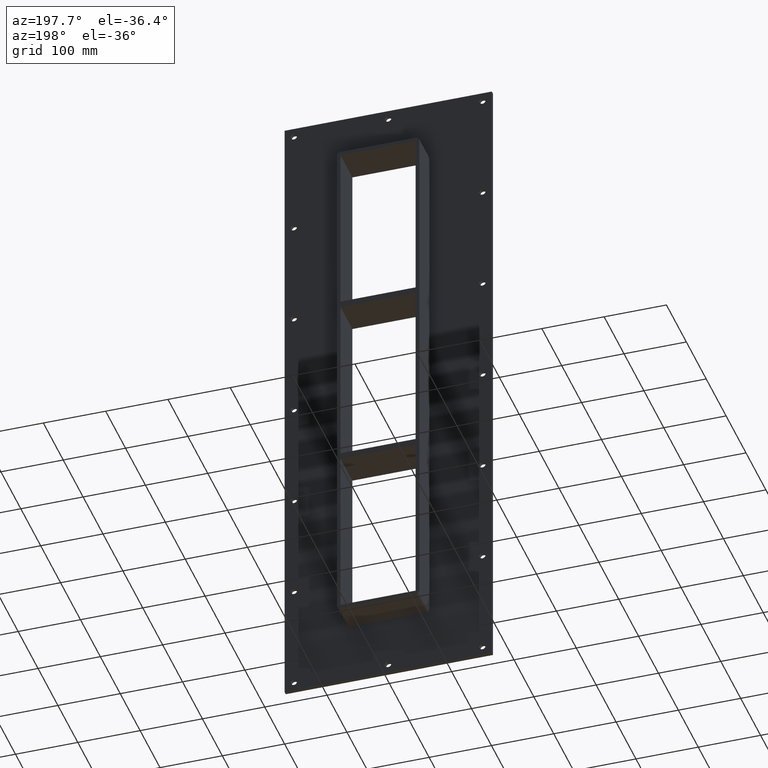
[diagram: clean part render]
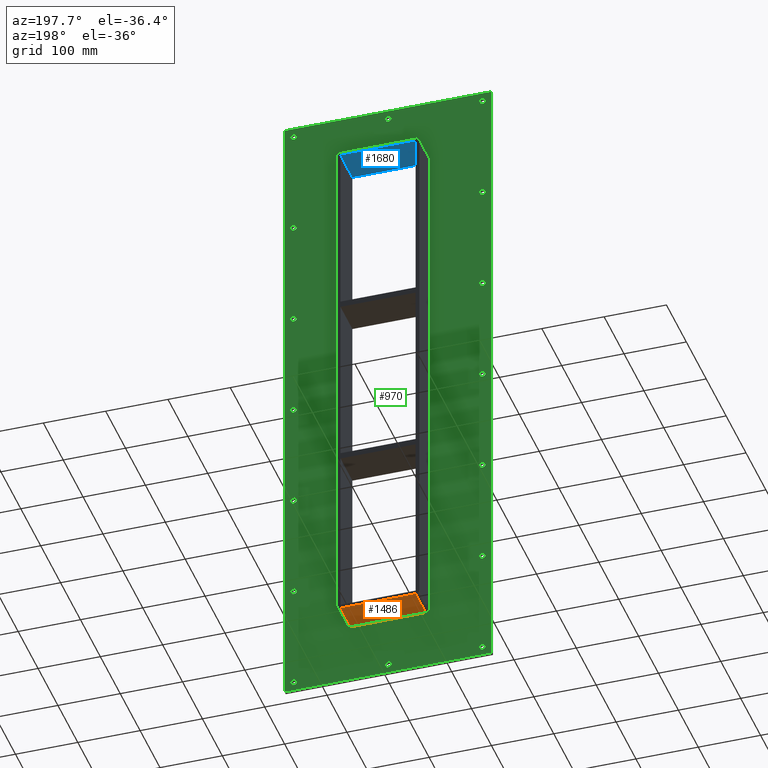
[diagram: same view with three faces highlighted in distinct colors, each labeled with its STEP entity id]
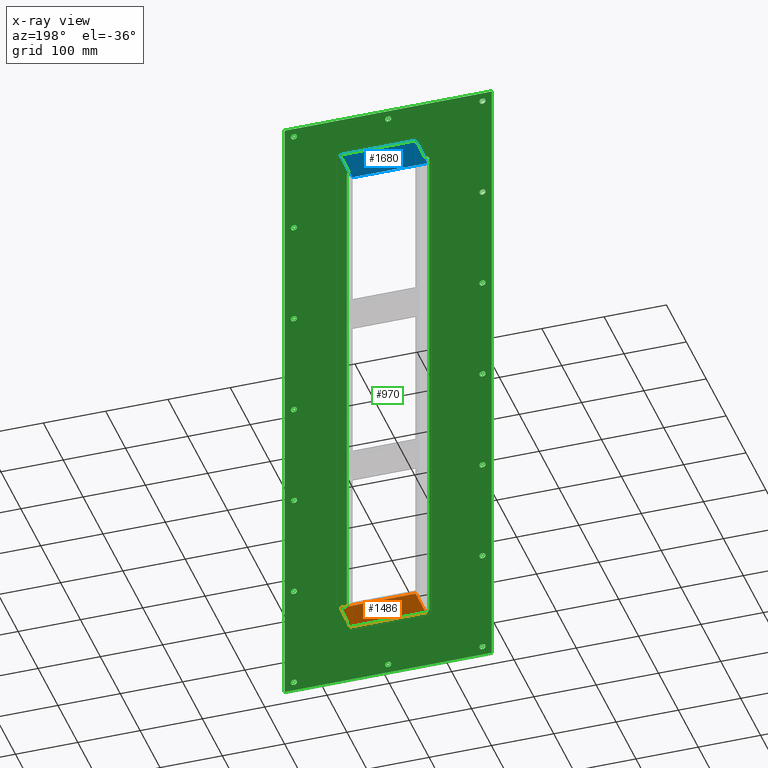
[diagram: x-ray of the same camera — body ghosted, the three highlighted faces saturated]
A machine part, auxiliary view with three faces highlighted in distinct colors.
The next image is the same camera in x-ray (body ghosted, the three faces saturated) — at least one of them is partly hidden behind the body in this view.
Their STEP definitions:

[orange] entity #1486 — the highlighted planar face has unit normal (0, 0, -1).
#900=CARTESIAN_POINT('',(-60.25,6.000000000000001,-433.0));
#901=VERTEX_POINT('',#900);
#911=CARTESIAN_POINT('',(60.25,6.000000000000001,-433.0));
#912=VERTEX_POINT('',#911);
#913=CARTESIAN_POINT('',(60.25,6.000000000000001,-433.0));
#914=DIRECTION('',(-1.0,0.0,0.0));
#915=VECTOR('',#914,120.5);
#916=LINE('',#913,#915);
#917=EDGE_CURVE('',#912,#901,#916,.T.);
#1395=CARTESIAN_POINT('',(60.25,57.0,-433.0));
#1396=VERTEX_POINT('',#1395);
#1397=CARTESIAN_POINT('',(60.25,6.000000000000001,-433.0));
#1398=DIRECTION('',(0.0,1.0,0.0));
#1399=VECTOR('',#1398,51.0);
#1400=LINE('',#1397,#1399);
#1401=EDGE_CURVE('',#912,#1396,#1400,.T.);
#1463=CARTESIAN_POINT('',(66.25,0.0,-433.0));
#1464=DIRECTION('',(0.0,0.0,-1.0));
#1465=DIRECTION('',(-1.0,0.0,0.0));
#1466=AXIS2_PLACEMENT_3D('',#1463,#1464,#1465);
#1467=PLANE('',#1466);
#1468=ORIENTED_EDGE('',*,*,#917,.T.);
#1469=CARTESIAN_POINT('',(-60.25,57.0,-433.0));
#1470=VERTEX_POINT('',#1469);
#1471=CARTESIAN_POINT('',(-60.25,57.0,-433.0));
#1472=DIRECTION('',(0.0,-1.0,0.0));
#1473=VECTOR('',#1472,51.0);
#1474=LINE('',#1471,#1473);
#1475=EDGE_CURVE('',#1470,#901,#1474,.T.);
#1476=ORIENTED_EDGE('',*,*,#1475,.F.);
#1477=CARTESIAN_POINT('',(60.25,57.0,-433.0));
#1478=DIRECTION('',(-1.0,0.0,0.0));
#1479=VECTOR('',#1478,120.5);
#1480=LINE('',#1477,#1479);
#1481=EDGE_CURVE('',#1396,#1470,#1480,.T.);
#1482=ORIENTED_EDGE('',*,*,#1481,.F.);
#1483=ORIENTED_EDGE('',*,*,#1401,.F.);
#1484=EDGE_LOOP('',(#1468,#1476,#1482,#1483));
#1485=FACE_OUTER_BOUND('',#1484,.T.);
#1486=ADVANCED_FACE('',(#1485),#1467,.T.);

[blue] entity #1680 — the highlighted planar face has unit normal (0, 0, 1).
#602=CARTESIAN_POINT('',(-60.25,57.0,427.0));
#603=VERTEX_POINT('',#602);
#610=CARTESIAN_POINT('',(-60.25,-3.0,427.0));
#611=VERTEX_POINT('',#610);
#612=CARTESIAN_POINT('',(-60.25,-3.0,427.0));
#613=DIRECTION('',(0.0,1.0,0.0));
#614=VECTOR('',#613,60.0);
#615=LINE('',#612,#614);
#616=EDGE_CURVE('',#611,#603,#615,.T.);
#664=CARTESIAN_POINT('',(60.25,-3.0,427.0));
#665=VERTEX_POINT('',#664);
#672=CARTESIAN_POINT('',(60.25,57.0,427.0));
#673=VERTEX_POINT('',#672);
#674=CARTESIAN_POINT('',(60.25,-3.0,427.0));
#675=DIRECTION('',(0.0,1.0,0.0));
#676=VECTOR('',#675,60.0);
#677=LINE('',#674,#676);
#678=EDGE_CURVE('',#665,#673,#677,.T.);
#1545=CARTESIAN_POINT('',(-60.25,-3.0,427.0));
#1546=DIRECTION('',(1.0,0.0,0.0));
#1547=VECTOR('',#1546,120.50000000000001);
#1548=LINE('',#1545,#1547);
#1549=EDGE_CURVE('',#611,#665,#1548,.T.);
#1664=CARTESIAN_POINT('',(-60.25,0.0,427.0));
#1665=DIRECTION('',(0.0,0.0,1.0));
#1666=DIRECTION('',(1.0,0.0,0.0));
#1667=AXIS2_PLACEMENT_3D('',#1664,#1665,#1666);
#1668=PLANE('',#1667);
#1669=ORIENTED_EDGE('',*,*,#616,.T.);
#1670=CARTESIAN_POINT('',(60.250000000000014,57.0,427.0));
#1671=DIRECTION('',(-1.0,0.0,0.0));
#1672=VECTOR('',#1671,120.50000000000001);
#1673=LINE('',#1670,#1672);
#1674=EDGE_CURVE('',#673,#603,#1673,.T.);
#1675=ORIENTED_EDGE('',*,*,#1674,.F.);
#1676=ORIENTED_EDGE('',*,*,#678,.F.);
#1677=ORIENTED_EDGE('',*,*,#1549,.F.);
#1678=EDGE_LOOP('',(#1669,#1675,#1676,#1677));
#1679=FACE_OUTER_BOUND('',#1678,.T.);
#1680=ADVANCED_FACE('',(#1679),#1668,.F.);

[green] entity #970 — the highlighted planar face has unit normal (0, 1, 0).
#73=CARTESIAN_POINT('',(-156.25000000000009,5.999999999999943,-518.0));
#74=VERTEX_POINT('',#73);
#75=CARTESIAN_POINT('',(-151.25000000000009,5.999999999999943,-518.0));
#76=DIRECTION('',(0.0,-1.0,0.0));
#77=DIRECTION('',(1.0,0.0,0.0));
#78=AXIS2_PLACEMENT_3D('',#75,#76,#77);
#79=CIRCLE('',#78,5.0);
#80=EDGE_CURVE('',#74,#74,#79,.T.);
#101=CARTESIAN_POINT('',(146.34999999999997,5.999999999999943,-345.29999999999984));
#102=VERTEX_POINT('',#101);
#103=CARTESIAN_POINT('',(151.34999999999997,5.999999999999943,-345.29999999999984));
#104=DIRECTION('',(0.0,-1.0,0.0));
#105=DIRECTION('',(1.0,0.0,0.0));
#106=AXIS2_PLACEMENT_3D('',#103,#104,#105);
#107=CIRCLE('',#106,5.0);
#108=EDGE_CURVE('',#102,#102,#107,.T.);
#129=CARTESIAN_POINT('',(-156.25000000000009,5.999999999999943,-345.29999999999984));
#130=VERTEX_POINT('',#129);
#131=CARTESIAN_POINT('',(-151.25000000000009,5.999999999999943,-345.29999999999984));
#132=DIRECTION('',(0.0,-1.0,0.0));
#133=DIRECTION('',(1.0,0.0,0.0));
#134=AXIS2_PLACEMENT_3D('',#131,#132,#133);
#135=CIRCLE('',#134,5.0);
#136=EDGE_CURVE('',#130,#130,#135,.T.);
#157=CARTESIAN_POINT('',(146.34999999999997,5.999999999999943,-172.59999999999994));
#158=VERTEX_POINT('',#157);
#159=CARTESIAN_POINT('',(151.34999999999997,5.999999999999943,-172.59999999999994));
#160=DIRECTION('',(0.0,-1.0,0.0));
#161=DIRECTION('',(1.0,0.0,0.0));
#162=AXIS2_PLACEMENT_3D('',#159,#160,#161);
#163=CIRCLE('',#162,5.0);
#164=EDGE_CURVE('',#158,#158,#163,.T.);
#185=CARTESIAN_POINT('',(-156.25000000000009,5.999999999999943,-172.59999999999994));
#186=VERTEX_POINT('',#185);
#187=CARTESIAN_POINT('',(-151.25000000000009,5.999999999999943,-172.59999999999994));
#188=DIRECTION('',(0.0,-1.0,0.0));
#189=DIRECTION('',(1.0,0.0,0.0));
#190=AXIS2_PLACEMENT_3D('',#187,#188,#189);
#191=CIRCLE('',#190,5.0);
#192=EDGE_CURVE('',#186,#186,#191,.T.);
#213=CARTESIAN_POINT('',(146.34999999999997,5.999999999999943,0.100000000000016));
#214=VERTEX_POINT('',#213);
#215=CARTESIAN_POINT('',(151.34999999999997,5.999999999999943,0.100000000000016));
#216=DIRECTION('',(0.0,-1.0,0.0));
#217=DIRECTION('',(1.0,0.0,0.0));
#218=AXIS2_PLACEMENT_3D('',#215,#216,#217);
#219=CIRCLE('',#218,5.0);
#220=EDGE_CURVE('',#214,#214,#219,.T.);
#241=CARTESIAN_POINT('',(-156.25000000000009,5.999999999999943,0.100000000000016));
#242=VERTEX_POINT('',#241);
#243=CARTESIAN_POINT('',(-151.25000000000009,5.999999999999943,0.100000000000016));
#244=DIRECTION('',(0.0,-1.0,0.0));
#245=DIRECTION('',(1.0,0.0,0.0));
#246=AXIS2_PLACEMENT_3D('',#243,#244,#245);
#247=CIRCLE('',#246,5.0);
#248=EDGE_CURVE('',#242,#242,#247,.T.);
#269=CARTESIAN_POINT('',(146.34999999999997,5.999999999999943,172.80000000000013));
#270=VERTEX_POINT('',#269);
#271=CARTESIAN_POINT('',(151.34999999999997,5.999999999999943,172.80000000000013));
#272=DIRECTION('',(0.0,-1.0,0.0));
#273=DIRECTION('',(1.0,0.0,0.0));
#274=AXIS2_PLACEMENT_3D('',#271,#272,#273);
#275=CIRCLE('',#274,5.0);
#276=EDGE_CURVE('',#270,#270,#275,.T.);
#297=CARTESIAN_POINT('',(-156.25000000000009,5.999999999999943,172.80000000000013));
#298=VERTEX_POINT('',#297);
#299=CARTESIAN_POINT('',(-151.25000000000009,5.999999999999943,172.80000000000013));
#300=DIRECTION('',(0.0,-1.0,0.0));
#301=DIRECTION('',(1.0,0.0,0.0));
#302=AXIS2_PLACEMENT_3D('',#299,#300,#301);
#303=CIRCLE('',#302,5.0);
#304=EDGE_CURVE('',#298,#298,#303,.T.);
#325=CARTESIAN_POINT('',(146.34999999999997,5.999999999999943,345.50000000000011));
#326=VERTEX_POINT('',#325);
#327=CARTESIAN_POINT('',(151.34999999999997,5.999999999999943,345.50000000000011));
#328=DIRECTION('',(0.0,-1.0,0.0));
#329=DIRECTION('',(1.0,0.0,0.0));
#330=AXIS2_PLACEMENT_3D('',#327,#328,#329);
#331=CIRCLE('',#330,5.0);
#332=EDGE_CURVE('',#326,#326,#331,.T.);
#353=CARTESIAN_POINT('',(-156.25000000000009,5.999999999999943,345.50000000000011));
#354=VERTEX_POINT('',#353);
#355=CARTESIAN_POINT('',(-151.25000000000009,5.999999999999943,345.50000000000011));
#356=DIRECTION('',(0.0,-1.0,0.0));
#357=DIRECTION('',(1.0,0.0,0.0));
#358=AXIS2_PLACEMENT_3D('',#355,#356,#357);
#359=CIRCLE('',#358,5.0);
#360=EDGE_CURVE('',#354,#354,#359,.T.);
#381=CARTESIAN_POINT('',(-4.950000000000063,5.999999999999943,518.20000000000005));
#382=VERTEX_POINT('',#381);
#383=CARTESIAN_POINT('',(0.049999999999937,5.999999999999943,518.20000000000005));
#384=DIRECTION('',(0.0,-1.0,0.0));
#385=DIRECTION('',(1.0,0.0,0.0));
#386=AXIS2_PLACEMENT_3D('',#383,#384,#385);
#387=CIRCLE('',#386,5.0);
#388=EDGE_CURVE('',#382,#382,#387,.T.);
#409=CARTESIAN_POINT('',(-4.950000000000063,5.999999999999943,-518.0));
#410=VERTEX_POINT('',#409);
#411=CARTESIAN_POINT('',(0.049999999999937,5.999999999999943,-518.0));
#412=DIRECTION('',(0.0,-1.0,0.0));
#413=DIRECTION('',(1.0,0.0,0.0));
#414=AXIS2_PLACEMENT_3D('',#411,#412,#413);
#415=CIRCLE('',#414,5.0);
#416=EDGE_CURVE('',#410,#410,#415,.T.);
#437=CARTESIAN_POINT('',(146.34999999999997,5.999999999999943,-518.0));
#438=VERTEX_POINT('',#437);
#439=CARTESIAN_POINT('',(151.34999999999997,5.999999999999943,-518.0));
#440=DIRECTION('',(0.0,-1.0,0.0));
#441=DIRECTION('',(1.0,0.0,0.0));
#442=AXIS2_PLACEMENT_3D('',#439,#440,#441);
#443=CIRCLE('',#442,5.0);
#444=EDGE_CURVE('',#438,#438,#443,.T.);
#465=CARTESIAN_POINT('',(-156.25000000000009,5.999999999999943,518.20000000000005));
#466=VERTEX_POINT('',#465);
#467=CARTESIAN_POINT('',(-151.25000000000009,5.999999999999943,518.20000000000005));
#468=DIRECTION('',(0.0,-1.0,0.0));
#469=DIRECTION('',(1.0,0.0,0.0));
#470=AXIS2_PLACEMENT_3D('',#467,#468,#469);
#471=CIRCLE('',#470,5.0);
#472=EDGE_CURVE('',#466,#466,#471,.T.);
#493=CARTESIAN_POINT('',(146.34999999999997,5.999999999999943,518.20000000000005));
#494=VERTEX_POINT('',#493);
#495=CARTESIAN_POINT('',(151.34999999999997,5.999999999999943,518.20000000000005));
#496=DIRECTION('',(0.0,-1.0,0.0));
#497=DIRECTION('',(1.0,0.0,0.0));
#498=AXIS2_PLACEMENT_3D('',#495,#496,#497);
#499=CIRCLE('',#498,5.0);
#500=EDGE_CURVE('',#494,#494,#499,.T.);
#813=CARTESIAN_POINT('',(-1.219380E-014,6.000000000000001,2.438759E-014));
#814=DIRECTION('',(0.0,1.0,0.0));
#815=DIRECTION('',(0.0,0.0,1.0));
#816=AXIS2_PLACEMENT_3D('',#813,#814,#815);
#817=PLANE('',#816);
#818=CARTESIAN_POINT('',(-166.25000000000003,6.000000000000001,533.0));
#819=VERTEX_POINT('',#818);
#820=CARTESIAN_POINT('',(166.24999999999997,6.000000000000001,533.0));
#821=VERTEX_POINT('',#820);
#822=CARTESIAN_POINT('',(-166.25000000000003,6.000000000000001,533.0));
#823=DIRECTION('',(1.0,0.0,0.0));
#824=VECTOR('',#823,332.5);
#825=LINE('',#822,#824);
#826=EDGE_CURVE('',#819,#821,#825,.T.);
#827=ORIENTED_EDGE('',*,*,#826,.T.);
#828=CARTESIAN_POINT('',(166.24999999999997,6.000000000000001,-532.99999999999989));
#829=VERTEX_POINT('',#828);
#830=CARTESIAN_POINT('',(166.25,6.000000000000001,533.0));
#831=DIRECTION('',(0.0,0.0,-1.0));
#832=VECTOR('',#831,1066.0);
#833=LINE('',#830,#832);
#834=EDGE_CURVE('',#821,#829,#833,.T.);
#835=ORIENTED_EDGE('',*,*,#834,.T.);
#836=CARTESIAN_POINT('',(-166.25000000000003,6.000000000000001,-532.99999999999989));
#837=VERTEX_POINT('',#836);
#838=CARTESIAN_POINT('',(166.25,6.000000000000001,-533.0));
#839=DIRECTION('',(-1.0,0.0,0.0));
#840=VECTOR('',#839,332.5);
#841=LINE('',#838,#840);
#842=EDGE_CURVE('',#829,#837,#841,.T.);
#843=ORIENTED_EDGE('',*,*,#842,.T.);
#844=CARTESIAN_POINT('',(-166.25000000000003,6.000000000000001,-533.0));
#845=DIRECTION('',(0.0,0.0,1.0));
#846=VECTOR('',#845,1066.0);
#847=LINE('',#844,#846);
#848=EDGE_CURVE('',#837,#819,#847,.T.);
#849=ORIENTED_EDGE('',*,*,#848,.T.);
#850=EDGE_LOOP('',(#827,#835,#843,#849));
#851=FACE_OUTER_BOUND('',#850,.T.);
#852=ORIENTED_EDGE('',*,*,#80,.T.);
#853=EDGE_LOOP('',(#852));
#854=FACE_BOUND('',#853,.T.);
#855=ORIENTED_EDGE('',*,*,#108,.T.);
#856=EDGE_LOOP('',(#855));
#857=FACE_BOUND('',#856,.T.);
#858=ORIENTED_EDGE('',*,*,#136,.T.);
#859=EDGE_LOOP('',(#858));
#860=FACE_BOUND('',#859,.T.);
#861=ORIENTED_EDGE('',*,*,#164,.T.);
#862=EDGE_LOOP('',(#861));
#863=FACE_BOUND('',#862,.T.);
#864=ORIENTED_EDGE('',*,*,#192,.T.);
#865=EDGE_LOOP('',(#864));
#866=FACE_BOUND('',#865,.T.);
#867=ORIENTED_EDGE('',*,*,#220,.T.);
#868=EDGE_LOOP('',(#867));
#869=FACE_BOUND('',#868,.T.);
#870=ORIENTED_EDGE('',*,*,#248,.T.);
#871=EDGE_LOOP('',(#870));
#872=FACE_BOUND('',#871,.T.);
#873=ORIENTED_EDGE('',*,*,#276,.T.);
#874=EDGE_LOOP('',(#873));
#875=FACE_BOUND('',#874,.T.);
#876=ORIENTED_EDGE('',*,*,#304,.T.);
#877=EDGE_LOOP('',(#876));
#878=FACE_BOUND('',#877,.T.);
#879=ORIENTED_EDGE('',*,*,#332,.T.);
#880=EDGE_LOOP('',(#879));
#881=FACE_BOUND('',#880,.T.);
#882=ORIENTED_EDGE('',*,*,#360,.T.);
#883=EDGE_LOOP('',(#882));
#884=FACE_BOUND('',#883,.T.);
#885=ORIENTED_EDGE('',*,*,#388,.T.);
#886=EDGE_LOOP('',(#885));
#887=FACE_BOUND('',#886,.T.);
#888=ORIENTED_EDGE('',*,*,#416,.T.);
#889=EDGE_LOOP('',(#888));
#890=FACE_BOUND('',#889,.T.);
#891=ORIENTED_EDGE('',*,*,#444,.T.);
#892=EDGE_LOOP('',(#891));
#893=FACE_BOUND('',#892,.T.);
#894=ORIENTED_EDGE('',*,*,#472,.T.);
#895=EDGE_LOOP('',(#894));
#896=FACE_BOUND('',#895,.T.);
#897=ORIENTED_EDGE('',*,*,#500,.T.);
#898=EDGE_LOOP('',(#897));
#899=FACE_BOUND('',#898,.T.);
#900=CARTESIAN_POINT('',(-60.25,6.000000000000001,-433.0));
#901=VERTEX_POINT('',#900);
#902=CARTESIAN_POINT('',(-66.25,6.000000000000001,-427.0));
#903=VERTEX_POINT('',#902);
#904=CARTESIAN_POINT('',(-60.25,6.000000000000001,-427.0));
#905=DIRECTION('',(0.0,1.0,0.0));
#906=DIRECTION('',(-0.707106781186551,0.0,-0.707106781186544));
#907=AXIS2_PLACEMENT_3D('',#904,#905,#906);
#908=CIRCLE('',#907,6.0);
#909=EDGE_CURVE('',#901,#903,#908,.T.);
#910=ORIENTED_EDGE('',*,*,#909,.F.);
#911=CARTESIAN_POINT('',(60.25,6.000000000000001,-433.0));
#912=VERTEX_POINT('',#911);
#913=CARTESIAN_POINT('',(60.25,6.000000000000001,-433.0));
#914=DIRECTION('',(-1.0,0.0,0.0));
#915=VECTOR('',#914,120.5);
#916=LINE('',#913,#915);
#917=EDGE_CURVE('',#912,#901,#916,.T.);
#918=ORIENTED_EDGE('',*,*,#917,.F.);
#919=CARTESIAN_POINT('',(66.25,6.000000000000001,-426.99999999999989));
#920=VERTEX_POINT('',#919);
#921=CARTESIAN_POINT('',(60.25,6.000000000000001,-426.99999999999989));
#922=DIRECTION('',(0.0,1.0,0.0));
#923=DIRECTION('',(0.707106781186542,0.0,-0.707106781186553));
#924=AXIS2_PLACEMENT_3D('',#921,#922,#923);
#925=CIRCLE('',#924,6.000000000000001);
#926=EDGE_CURVE('',#920,#912,#925,.T.);
#927=ORIENTED_EDGE('',*,*,#926,.F.);
#928=CARTESIAN_POINT('',(66.25,6.000000000000001,427.00000000000011));
#929=VERTEX_POINT('',#928);
#930=CARTESIAN_POINT('',(66.25,6.000000000000001,427.00000000000011));
#931=DIRECTION('',(0.0,0.0,-1.0));
#932=VECTOR('',#931,854.0);
#933=LINE('',#930,#932);
#934=EDGE_CURVE('',#929,#920,#933,.T.);
#935=ORIENTED_EDGE('',*,*,#934,.F.);
#936=CARTESIAN_POINT('',(60.25,6.000000000000001,433.00000000000011));
#937=VERTEX_POINT('',#936);
#938=CARTESIAN_POINT('',(60.25,6.000000000000001,427.00000000000011));
#939=DIRECTION('',(0.0,1.0,0.0));
#940=DIRECTION('',(0.707106781186542,0.0,0.707106781186553));
#941=AXIS2_PLACEMENT_3D('',#938,#939,#940);
#942=CIRCLE('',#941,6.000000000000001);
#943=EDGE_CURVE('',#937,#929,#942,.T.);
#944=ORIENTED_EDGE('',*,*,#943,.F.);
#945=CARTESIAN_POINT('',(-60.25,6.000000000000001,433.00000000000011));
#946=VERTEX_POINT('',#945);
#947=CARTESIAN_POINT('',(-60.250000000000007,6.000000000000001,433.00000000000011));
#948=DIRECTION('',(1.0,0.0,0.0));
#949=VECTOR('',#948,120.5);
#950=LINE('',#947,#949);
#951=EDGE_CURVE('',#946,#937,#950,.T.);
#952=ORIENTED_EDGE('',*,*,#951,.F.);
#953=CARTESIAN_POINT('',(-66.25,6.000000000000001,427.0));
#954=VERTEX_POINT('',#953);
#955=CARTESIAN_POINT('',(-60.25,6.000000000000001,427.0));
#956=DIRECTION('',(0.0,1.0,0.0));
#957=DIRECTION('',(-0.707106781186542,0.0,0.707106781186553));
#958=AXIS2_PLACEMENT_3D('',#955,#956,#957);
#959=CIRCLE('',#958,6.000000000000001);
#960=EDGE_CURVE('',#954,#946,#959,.T.);
#961=ORIENTED_EDGE('',*,*,#960,.F.);
#962=CARTESIAN_POINT('',(-66.25,6.000000000000001,-427.00000000000006));
#963=DIRECTION('',(0.0,0.0,1.0));
#964=VECTOR('',#963,854.0);
#965=LINE('',#962,#964);
#966=EDGE_CURVE('',#903,#954,#965,.T.);
#967=ORIENTED_EDGE('',*,*,#966,.F.);
#968=EDGE_LOOP('',(#910,#918,#927,#935,#944,#952,#961,#967));
#969=FACE_BOUND('',#968,.T.);
#970=ADVANCED_FACE('',(#851,#854,#857,#860,#863,#866,#869,#872,#875,#878,#881,#884,#887,#890,#893,#896,#899,#969),#817,.T.);